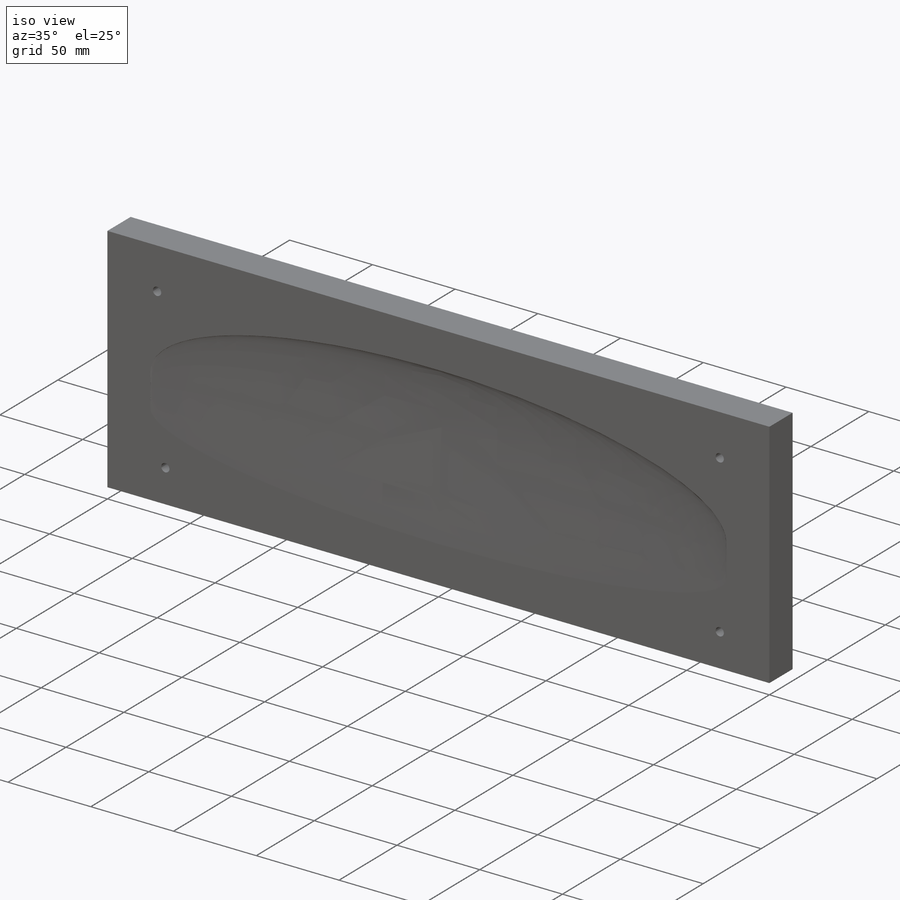
[diagram: iso view]
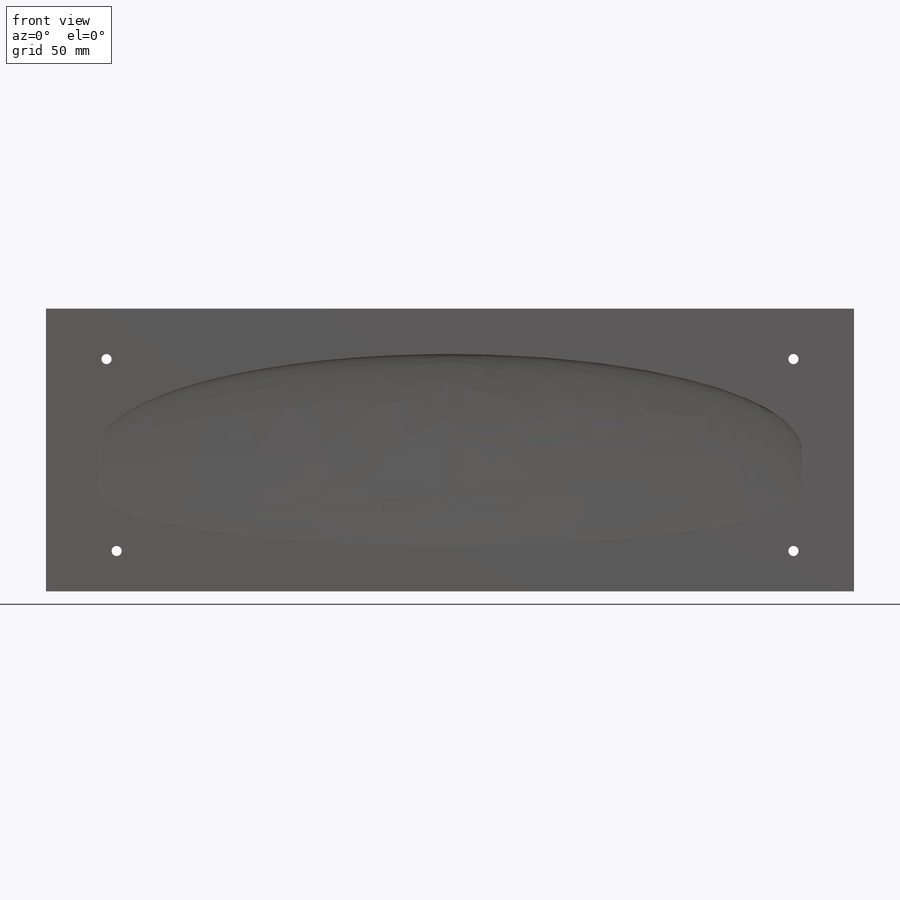
[diagram: front view]
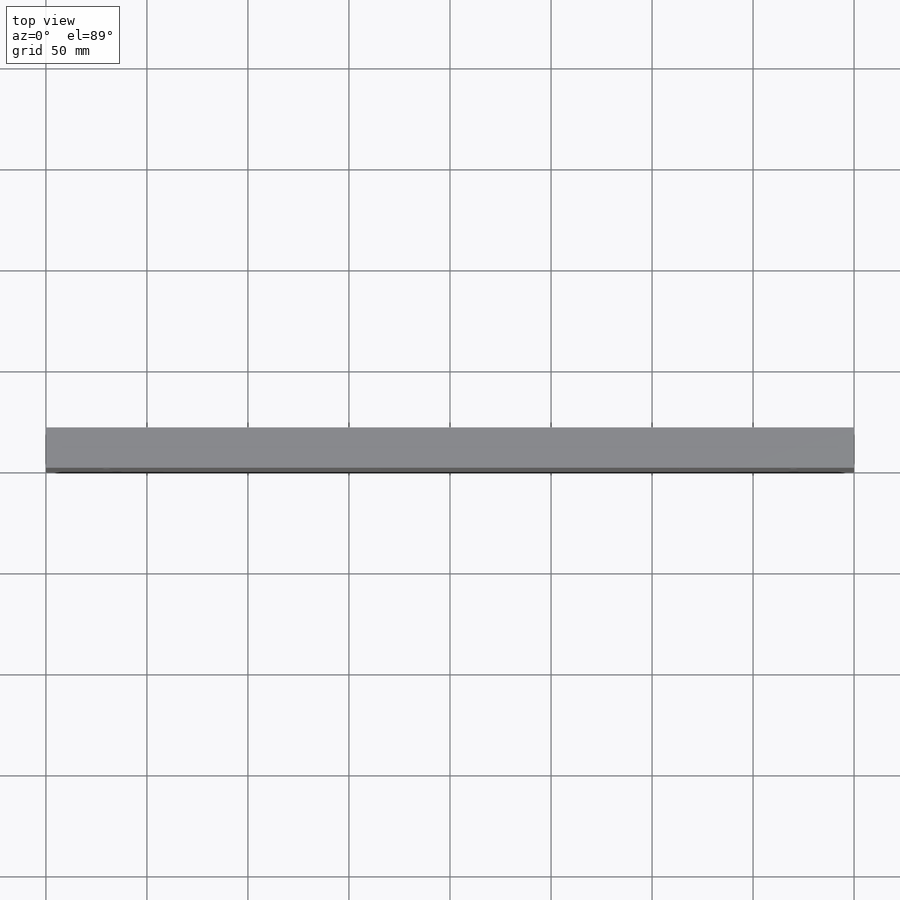
[diagram: top view]
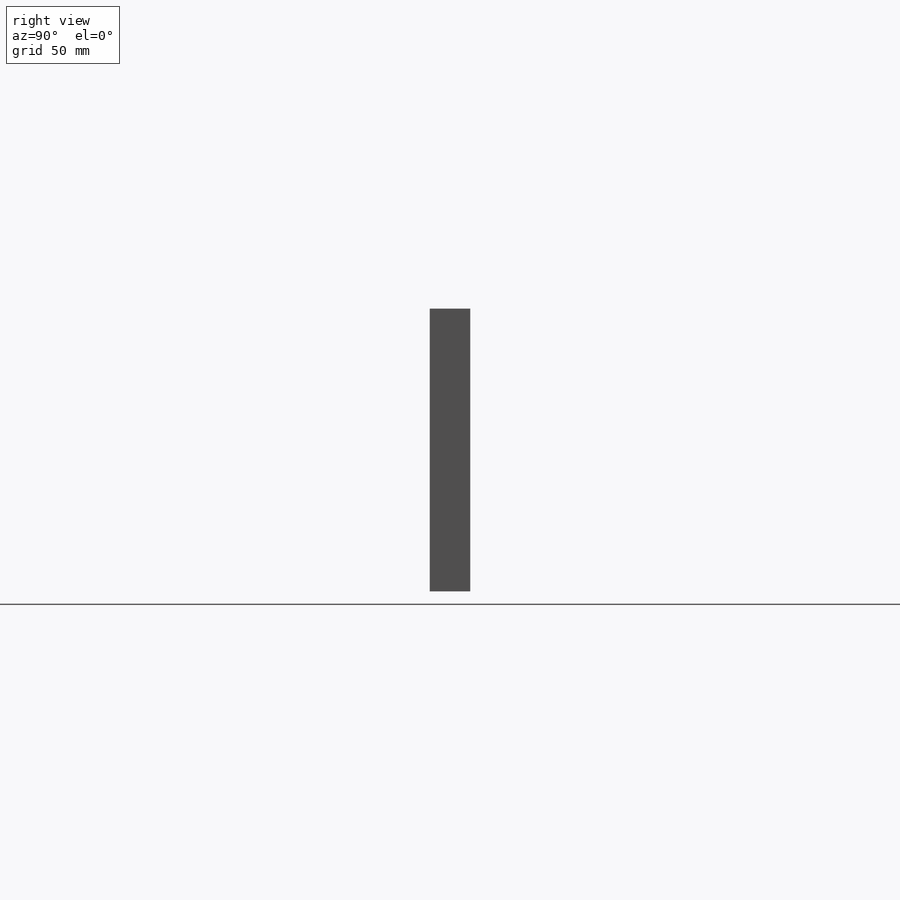
[diagram: right view]
SOLIDWORKS PART (.sldprt)
format: sldprt  version: not decoded by parser v0  size: 334,848 bytes
history: native  units: mm
features: sketch x9, plane x5, material x1, mirror x1, extrude x1, hole x1, boolean_combine x1 (+8 scaffold rows collapsed)
feature tree (27):
  scaffold x8  (default folders/planes/origin — collapsed)
  material  "Material <nicht festgelegt>"
  plane  "Ebene vorne"
  plane  "Ebene oben"
  plane  "Ebene rechts"
  sketch  "Grundskizze"  dims[c1.D1=95.0mm c1.D2=174.0mm c1.D3=7.5mm c1.D4=20.0mm c2.D3=7.5mm]
  plane  " Ebene wurzelprofil"
  plane  "Ebene enprofil"  Offset=174mm
  sketch  "W-Profil"
  sketch  "E-Profil"  dims[D1=~1.62654mm]
  sketch  "Leitlinie 1"
  sketch  "Leitlinie2"
  mirror  "Spiegeln1"
  sketch  "Skizze9"  dims[D1=400.0mm D2=140.0mm]
  extrude  "Aufsatz-Linear austragen3"  Depth=40mm
  sketch  "Skizze14"  dims[c1.D1=25.0mm c1.D2=30.0mm c1.D3=20.0mm c1.D4=30.0mm c1.D5=30.0mm c1.D6=25.0mm c1.D7=20.0mm c1.D8=~40.565403mm c2.D8=90.0deg c3.D8=35.0mm]
  hole  "Ø5.0 (5) Durchmesser Bohrung4"  Diameter=5mm Depth=40mm
  sketch  "3D-Skizze1"
  sketch  "Skizze21"  dims[hole-wizard template sketch: 59 standard entries collapsed; hole parameters kept: c18.Bohrerdurchmesser=5.0mm c18.Bohrungstiefe=40.0mm]
  boolean_combine  "Kombinieren5"
decode coverage: 7 of 13 modeling features carry decoded parameters
note: ~ marks probable driven/reference dimensions
note: suppression state not decoded; provenance and decode notes live in map.json
